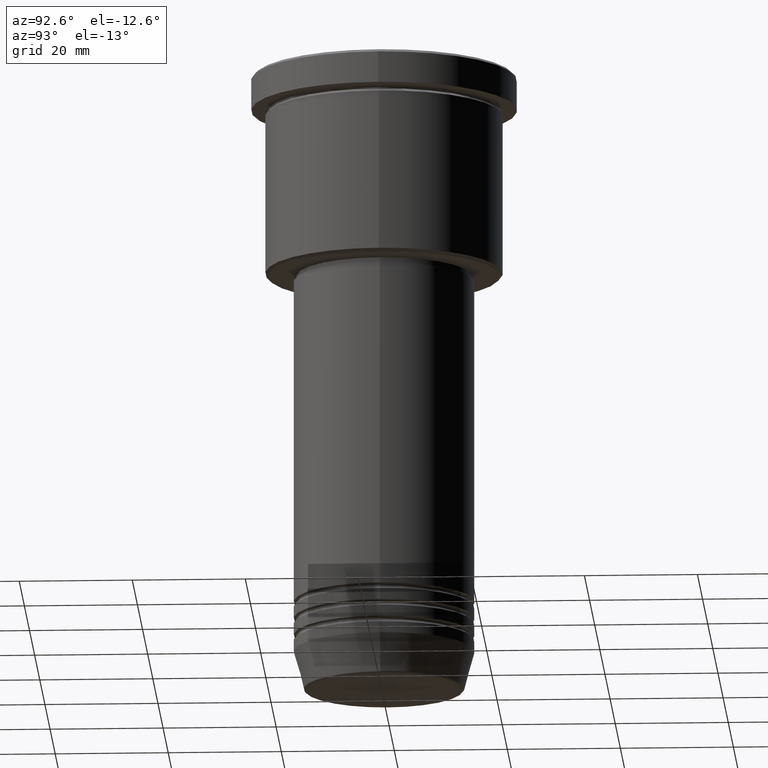
[diagram: clean part render]
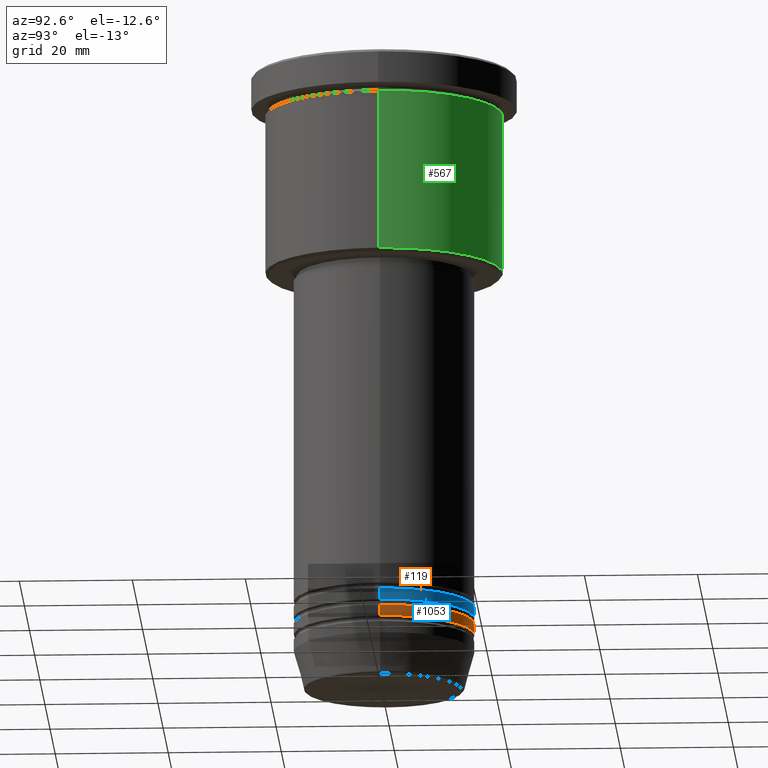
[diagram: same view with three faces highlighted in distinct colors, each labeled with its STEP entity id]
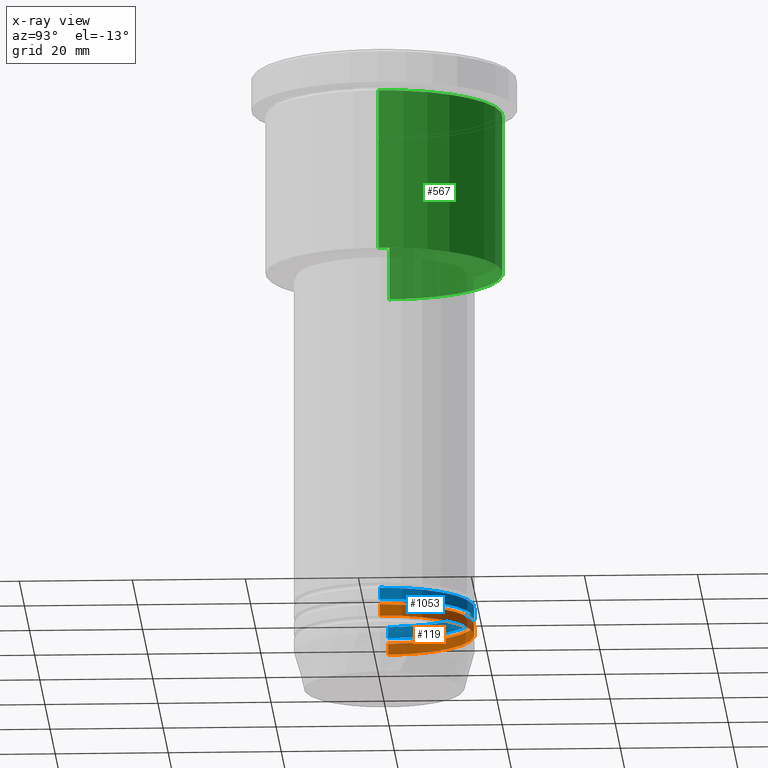
[diagram: x-ray of the same camera — body ghosted, the three highlighted faces saturated]
A machine part, auxiliary view with three faces highlighted in distinct colors.
The next image is the same camera in x-ray (body ghosted, the three faces saturated) — at least one of them is partly hidden behind the body in this view.
Their STEP definitions:

[orange] entity #119 — the highlighted cylindrical surface (partial cylindrical patch) has radius 16 mm, axis along (-0, -0, 1).
#8 = VERTEX_POINT ( 'NONE', #951 ) ;
#56 = AXIS2_PLACEMENT_3D ( 'NONE', #86, #831, #1012 ) ;
#67 = CARTESIAN_POINT ( 'NONE',  ( 16.00000000000000000, 0.000000000000000000, -98.99999999999998579 ) ) ;
#86 = CARTESIAN_POINT ( 'NONE',  ( 0.000000000000000000, 0.000000000000000000, -98.99999999999998579 ) ) ;
#94 = AXIS2_PLACEMENT_3D ( 'NONE', #783, #149, #529 ) ;
#105 = VERTEX_POINT ( 'NONE', #67 ) ;
#119 = ADVANCED_FACE ( 'NONE', ( #438 ), #899, .T. ) ;
#149 = DIRECTION ( 'NONE',  ( -0.000000000000000000, -0.000000000000000000, 1.000000000000000000 ) ) ;
#171 = CARTESIAN_POINT ( 'NONE',  ( 0.000000000000000000, 0.000000000000000000, 0.000000000000000000 ) ) ;
#186 = CARTESIAN_POINT ( 'NONE',  ( 16.00000000000000000, 0.000000000000000000, 0.000000000000000000 ) ) ;
#239 = CARTESIAN_POINT ( 'NONE',  ( -16.00000000000000000, 1.959434878635765131E-15, -100.9999999999999716 ) ) ;
#277 = EDGE_CURVE ( 'NONE', #105, #1149, #635, .T. ) ;
#308 = CARTESIAN_POINT ( 'NONE',  ( -16.00000000000000000, 1.959434878635765131E-15, 0.000000000000000000 ) ) ;
#322 = LINE ( 'NONE', #308, #911 ) ;
#337 = ORIENTED_EDGE ( 'NONE', *, *, #277, .F. ) ;
#380 = LINE ( 'NONE', #186, #386 ) ;
#386 = VECTOR ( 'NONE', #927, 1000.000000000000000 ) ;
#418 = EDGE_CURVE ( 'NONE', #8, #105, #380, .T. ) ;
#438 = FACE_OUTER_BOUND ( 'NONE', #483, .T. ) ;
#483 = EDGE_LOOP ( 'NONE', ( #572, #619, #337, #606 ) ) ;
#497 = EDGE_CURVE ( 'NONE', #8, #630, #1095, .T. ) ;
#529 = DIRECTION ( 'NONE',  ( 1.000000000000000000, 0.000000000000000000, 0.000000000000000000 ) ) ;
#572 = ORIENTED_EDGE ( 'NONE', *, *, #497, .T. ) ;
#606 = ORIENTED_EDGE ( 'NONE', *, *, #418, .F. ) ;
#612 = AXIS2_PLACEMENT_3D ( 'NONE', #171, #617, #1088 ) ;
#617 = DIRECTION ( 'NONE',  ( -0.000000000000000000, -0.000000000000000000, 1.000000000000000000 ) ) ;
#619 = ORIENTED_EDGE ( 'NONE', *, *, #1155, .T. ) ;
#630 = VERTEX_POINT ( 'NONE', #239 ) ;
#635 = CIRCLE ( 'NONE', #56, 16.00000000000000000 ) ;
#783 = CARTESIAN_POINT ( 'NONE',  ( 0.000000000000000000, 0.000000000000000000, -100.9999999999999716 ) ) ;
#795 = CARTESIAN_POINT ( 'NONE',  ( -16.00000000000000000, 1.959434878635765131E-15, -98.99999999999998579 ) ) ;
#831 = DIRECTION ( 'NONE',  ( -0.000000000000000000, -0.000000000000000000, 1.000000000000000000 ) ) ;
#899 = CYLINDRICAL_SURFACE ( 'NONE', #612, 16.00000000000000000 ) ;
#911 = VECTOR ( 'NONE', #1044, 1000.000000000000000 ) ;
#927 = DIRECTION ( 'NONE',  ( -0.000000000000000000, -0.000000000000000000, 1.000000000000000000 ) ) ;
#951 = CARTESIAN_POINT ( 'NONE',  ( 16.00000000000000000, 0.000000000000000000, -100.9999999999999716 ) ) ;
#1012 = DIRECTION ( 'NONE',  ( 1.000000000000000000, 0.000000000000000000, 0.000000000000000000 ) ) ;
#1044 = DIRECTION ( 'NONE',  ( -0.000000000000000000, -0.000000000000000000, 1.000000000000000000 ) ) ;
#1088 = DIRECTION ( 'NONE',  ( 1.000000000000000000, 0.000000000000000000, 0.000000000000000000 ) ) ;
#1095 = CIRCLE ( 'NONE', #94, 16.00000000000000000 ) ;
#1149 = VERTEX_POINT ( 'NONE', #795 ) ;
#1155 = EDGE_CURVE ( 'NONE', #630, #1149, #322, .T. ) ;

[blue] entity #1053 — the highlighted cylindrical surface (partial cylindrical patch) has radius 16 mm, axis along (-0, -0, 1).
#28 = CYLINDRICAL_SURFACE ( 'NONE', #187, 16.00000000000000000 ) ;
#113 = DIRECTION ( 'NONE',  ( -0.000000000000000000, -0.000000000000000000, 1.000000000000000000 ) ) ;
#187 = AXIS2_PLACEMENT_3D ( 'NONE', #192, #570, #393 ) ;
#192 = CARTESIAN_POINT ( 'NONE',  ( 0.000000000000000000, 0.000000000000000000, 0.000000000000000000 ) ) ;
#245 = EDGE_CURVE ( 'NONE', #797, #662, #485, .T. ) ;
#311 = VERTEX_POINT ( 'NONE', #603 ) ;
#318 = EDGE_LOOP ( 'NONE', ( #868, #1007, #925, #327 ) ) ;
#324 = CIRCLE ( 'NONE', #761, 16.00000000000000000 ) ;
#327 = ORIENTED_EDGE ( 'NONE', *, *, #1011, .F. ) ;
#368 = CIRCLE ( 'NONE', #678, 16.00000000000000000 ) ;
#393 = DIRECTION ( 'NONE',  ( 1.000000000000000000, 0.000000000000000000, 0.000000000000000000 ) ) ;
#465 = CARTESIAN_POINT ( 'NONE',  ( 0.000000000000000000, 0.000000000000000000, -95.99999999999998579 ) ) ;
#485 = LINE ( 'NONE', #666, #716 ) ;
#486 = DIRECTION ( 'NONE',  ( -0.000000000000000000, -0.000000000000000000, 1.000000000000000000 ) ) ;
#544 = CARTESIAN_POINT ( 'NONE',  ( -16.00000000000000000, 1.959434878635765131E-15, -95.99999999999998579 ) ) ;
#565 = DIRECTION ( 'NONE',  ( 1.000000000000000000, 0.000000000000000000, 0.000000000000000000 ) ) ;
#570 = DIRECTION ( 'NONE',  ( -0.000000000000000000, -0.000000000000000000, 1.000000000000000000 ) ) ;
#578 = VERTEX_POINT ( 'NONE', #1091 ) ;
#603 = CARTESIAN_POINT ( 'NONE',  ( 16.00000000000000000, 0.000000000000000000, -97.99999999999997158 ) ) ;
#631 = DIRECTION ( 'NONE',  ( -0.000000000000000000, -0.000000000000000000, 1.000000000000000000 ) ) ;
#632 = EDGE_CURVE ( 'NONE', #311, #797, #324, .T. ) ;
#638 = CARTESIAN_POINT ( 'NONE',  ( 0.000000000000000000, 0.000000000000000000, -97.99999999999997158 ) ) ;
#662 = VERTEX_POINT ( 'NONE', #544 ) ;
#666 = CARTESIAN_POINT ( 'NONE',  ( -16.00000000000000000, 1.959434878635765131E-15, 0.000000000000000000 ) ) ;
#678 = AXIS2_PLACEMENT_3D ( 'NONE', #465, #113, #565 ) ;
#716 = VECTOR ( 'NONE', #747, 1000.000000000000000 ) ;
#747 = DIRECTION ( 'NONE',  ( -0.000000000000000000, -0.000000000000000000, 1.000000000000000000 ) ) ;
#757 = CARTESIAN_POINT ( 'NONE',  ( 16.00000000000000000, 0.000000000000000000, 0.000000000000000000 ) ) ;
#761 = AXIS2_PLACEMENT_3D ( 'NONE', #638, #631, #834 ) ;
#797 = VERTEX_POINT ( 'NONE', #872 ) ;
#834 = DIRECTION ( 'NONE',  ( 1.000000000000000000, 0.000000000000000000, 0.000000000000000000 ) ) ;
#839 = VECTOR ( 'NONE', #486, 1000.000000000000000 ) ;
#862 = FACE_OUTER_BOUND ( 'NONE', #318, .T. ) ;
#868 = ORIENTED_EDGE ( 'NONE', *, *, #632, .T. ) ;
#872 = CARTESIAN_POINT ( 'NONE',  ( -16.00000000000000000, 1.959434878635765131E-15, -97.99999999999997158 ) ) ;
#925 = ORIENTED_EDGE ( 'NONE', *, *, #950, .F. ) ;
#950 = EDGE_CURVE ( 'NONE', #578, #662, #368, .T. ) ;
#1007 = ORIENTED_EDGE ( 'NONE', *, *, #245, .T. ) ;
#1011 = EDGE_CURVE ( 'NONE', #311, #578, #1020, .T. ) ;
#1020 = LINE ( 'NONE', #757, #839 ) ;
#1053 = ADVANCED_FACE ( 'NONE', ( #862 ), #28, .T. ) ;
#1091 = CARTESIAN_POINT ( 'NONE',  ( 16.00000000000000000, 0.000000000000000000, -95.99999999999998579 ) ) ;

[green] entity #567 — the highlighted cylindrical surface (partial cylindrical patch) has radius 21 mm, axis along (-0, -0, 1).
#43 = ORIENTED_EDGE ( 'NONE', *, *, #320, .T. ) ;
#49 = CARTESIAN_POINT ( 'NONE',  ( -21.00000000000000000, 2.571758278209441661E-15, -35.50000000000001421 ) ) ;
#81 = LINE ( 'NONE', #977, #983 ) ;
#87 = DIRECTION ( 'NONE',  ( -0.000000000000000000, -0.000000000000000000, 1.000000000000000000 ) ) ;
#121 = CARTESIAN_POINT ( 'NONE',  ( 21.00000000000000000, 0.000000000000000000, 0.000000000000000000 ) ) ;
#216 = ORIENTED_EDGE ( 'NONE', *, *, #1107, .F. ) ;
#247 = DIRECTION ( 'NONE',  ( 1.000000000000000000, 0.000000000000000000, 0.000000000000000000 ) ) ;
#289 = VERTEX_POINT ( 'NONE', #376 ) ;
#320 = EDGE_CURVE ( 'NONE', #1099, #974, #81, .T. ) ;
#364 = VERTEX_POINT ( 'NONE', #1110 ) ;
#376 = CARTESIAN_POINT ( 'NONE',  ( 21.00000000000000000, 0.000000000000000000, -35.50000000000001421 ) ) ;
#422 = AXIS2_PLACEMENT_3D ( 'NONE', #665, #573, #860 ) ;
#433 = DIRECTION ( 'NONE',  ( 1.000000000000000000, 0.000000000000000000, 0.000000000000000000 ) ) ;
#454 = DIRECTION ( 'NONE',  ( -0.000000000000000000, -0.000000000000000000, 1.000000000000000000 ) ) ;
#489 = CIRCLE ( 'NONE', #422, 21.00000000000000000 ) ;
#500 = EDGE_CURVE ( 'NONE', #364, #974, #999, .T. ) ;
#518 = EDGE_CURVE ( 'NONE', #289, #1099, #489, .T. ) ;
#519 = DIRECTION ( 'NONE',  ( -0.000000000000000000, -0.000000000000000000, 1.000000000000000000 ) ) ;
#567 = ADVANCED_FACE ( 'NONE', ( #743 ), #823, .T. ) ;
#573 = DIRECTION ( 'NONE',  ( -0.000000000000000000, -0.000000000000000000, 1.000000000000000000 ) ) ;
#665 = CARTESIAN_POINT ( 'NONE',  ( 0.000000000000000000, 0.000000000000000000, -35.50000000000001421 ) ) ;
#667 = CARTESIAN_POINT ( 'NONE',  ( -21.00000000000000000, 2.571758278209441661E-15, -6.999999999999994671 ) ) ;
#743 = FACE_OUTER_BOUND ( 'NONE', #1181, .T. ) ;
#775 = LINE ( 'NONE', #121, #1097 ) ;
#778 = AXIS2_PLACEMENT_3D ( 'NONE', #897, #942, #433 ) ;
#823 = CYLINDRICAL_SURFACE ( 'NONE', #1133, 21.00000000000000000 ) ;
#828 = CARTESIAN_POINT ( 'NONE',  ( 0.000000000000000000, 0.000000000000000000, 0.000000000000000000 ) ) ;
#860 = DIRECTION ( 'NONE',  ( -1.000000000000000000, 0.000000000000000000, 0.000000000000000000 ) ) ;
#897 = CARTESIAN_POINT ( 'NONE',  ( 0.000000000000000000, 0.000000000000000000, -6.999999999999994671 ) ) ;
#914 = ORIENTED_EDGE ( 'NONE', *, *, #500, .F. ) ;
#942 = DIRECTION ( 'NONE',  ( -0.000000000000000000, -0.000000000000000000, 1.000000000000000000 ) ) ;
#974 = VERTEX_POINT ( 'NONE', #667 ) ;
#977 = CARTESIAN_POINT ( 'NONE',  ( -21.00000000000000000, 2.571758278209441661E-15, 0.000000000000000000 ) ) ;
#983 = VECTOR ( 'NONE', #454, 1000.000000000000000 ) ;
#999 = CIRCLE ( 'NONE', #778, 21.00000000000000000 ) ;
#1033 = ORIENTED_EDGE ( 'NONE', *, *, #518, .T. ) ;
#1097 = VECTOR ( 'NONE', #519, 1000.000000000000000 ) ;
#1099 = VERTEX_POINT ( 'NONE', #49 ) ;
#1107 = EDGE_CURVE ( 'NONE', #289, #364, #775, .T. ) ;
#1110 = CARTESIAN_POINT ( 'NONE',  ( 21.00000000000000000, 0.000000000000000000, -6.999999999999994671 ) ) ;
#1133 = AXIS2_PLACEMENT_3D ( 'NONE', #828, #87, #247 ) ;
#1181 = EDGE_LOOP ( 'NONE', ( #1033, #43, #914, #216 ) ) ;